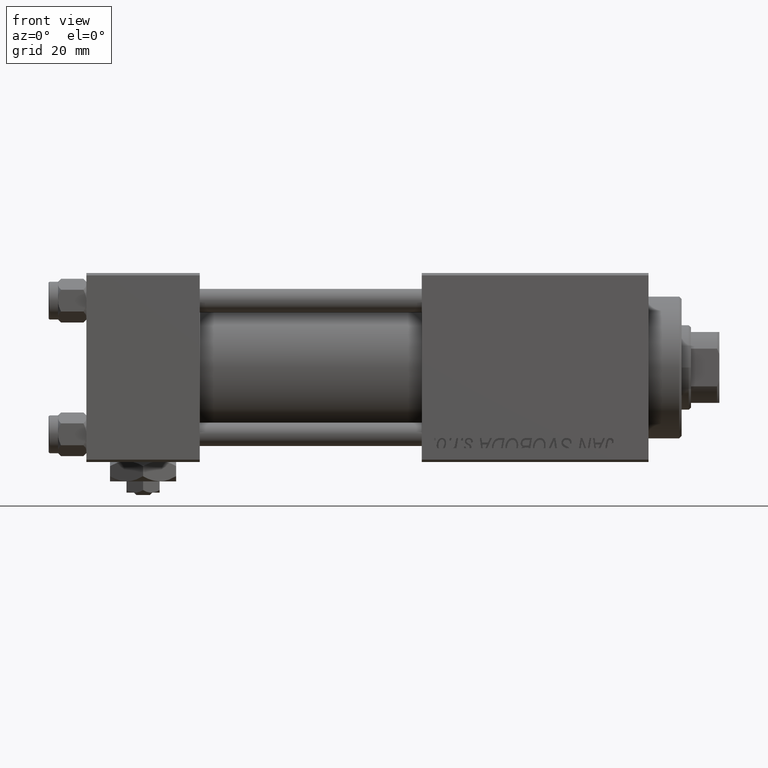
[diagram: clean part render]
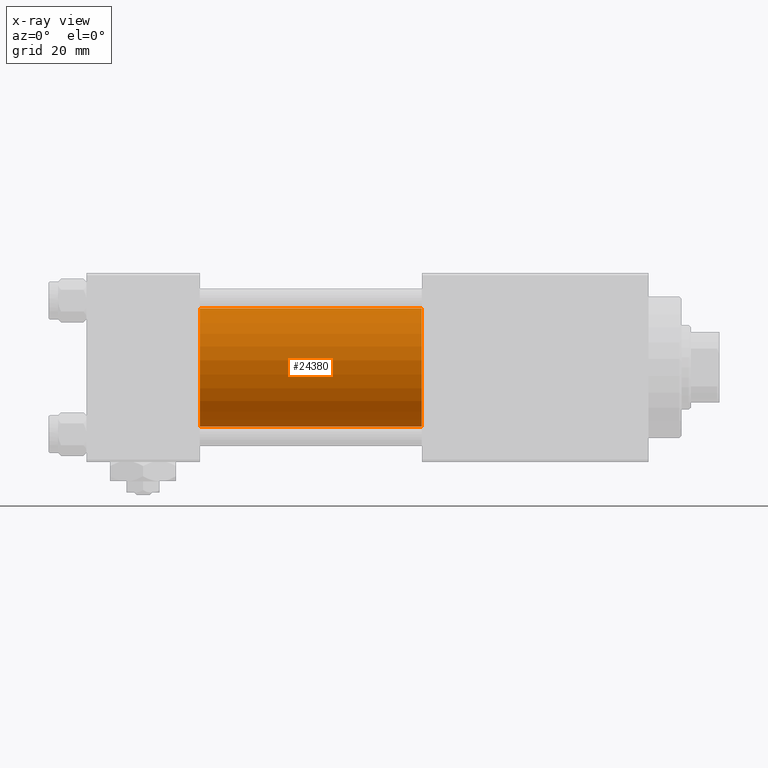
[diagram: x-ray — body ghosted, one internal face saturated and labeled with its STEP entity id]
A machine part, front view, then the same camera in x-ray: the body is ghosted and one INTERNAL B-rep face — a face not visible from any outside direction — is saturated and labeled: STEP entity #24380.
In plain terms, the highlighted cylindrical surface (partial cylindrical patch) has radius 12.5 mm, axis along (-1, -0, -0).
Its self-contained STEP definition (entity closure, byte-faithful):
#62 = VERTEX_POINT ( 'NONE', #50462 ) ;
#1228 = DIRECTION ( 'NONE',  ( 1.000000000000000000, 0.000000000000000000, 0.000000000000000000 ) ) ;
#1869 = EDGE_LOOP ( 'NONE', ( #11983, #22340, #20471, #12762 ) ) ;
#3016 = DIRECTION ( 'NONE',  ( -1.000000000000000000, -0.000000000000000000, -0.000000000000000000 ) ) ;
#3333 = CARTESIAN_POINT ( 'NONE',  ( 71.00000000000001421, -2.602085213965210642E-15, 0.000000000000000000 ) ) ;
#3924 = EDGE_CURVE ( 'NONE', #31345, #50639, #30535, .T. ) ;
#6161 = CARTESIAN_POINT ( 'NONE',  ( 71.00000000000001421, -2.602085213965210642E-15, 12.49999999999999645 ) ) ;
#9117 = DIRECTION ( 'NONE',  ( 0.000000000000000000, 0.000000000000000000, -1.000000000000000000 ) ) ;
#9453 = CARTESIAN_POINT ( 'NONE',  ( 71.00000000000001421, -1.071276715031019515E-15, -12.49999999999999645 ) ) ;
#10713 = CARTESIAN_POINT ( 'NONE',  ( 71.00000000000001421, -1.071276715031019515E-15, -12.49999999999999645 ) ) ;
#11983 = ORIENTED_EDGE ( 'NONE', *, *, #3924, .T. ) ;
#12762 = ORIENTED_EDGE ( 'NONE', *, *, #23450, .F. ) ;
#13086 = AXIS2_PLACEMENT_3D ( 'NONE', #39251, #3016, #19033 ) ;
#13112 = CIRCLE ( 'NONE', #44126, 12.49999999999999645 ) ;
#13116 = EDGE_CURVE ( 'NONE', #62, #47646, #13112, .T. ) ;
#13950 = CARTESIAN_POINT ( 'NONE',  ( 71.00000000000001421, -2.602085213965210642E-15, 12.49999999999999645 ) ) ;
#19033 = DIRECTION ( 'NONE',  ( 0.000000000000000000, 0.000000000000000000, 1.000000000000000000 ) ) ;
#19363 = DIRECTION ( 'NONE',  ( -1.000000000000000000, -0.000000000000000000, -0.000000000000000000 ) ) ;
#20120 = DIRECTION ( 'NONE',  ( 0.000000000000000000, 0.000000000000000000, -1.000000000000000000 ) ) ;
#20471 = ORIENTED_EDGE ( 'NONE', *, *, #13116, .F. ) ;
#22340 = ORIENTED_EDGE ( 'NONE', *, *, #24052, .T. ) ;
#23450 = EDGE_CURVE ( 'NONE', #31345, #62, #34276, .T. ) ;
#24052 = EDGE_CURVE ( 'NONE', #50639, #47646, #50371, .T. ) ;
#24380 = ADVANCED_FACE ( 'NONE', ( #26137 ), #38987, .F. ) ;
#26137 = FACE_OUTER_BOUND ( 'NONE', #1869, .T. ) ;
#27980 = AXIS2_PLACEMENT_3D ( 'NONE', #3333, #47448, #20120 ) ;
#28207 = VECTOR ( 'NONE', #19363, 1000.000000000000000 ) ;
#28999 = VECTOR ( 'NONE', #50291, 1000.000000000000000 ) ;
#30535 = CIRCLE ( 'NONE', #27980, 12.49999999999999645 ) ;
#31345 = VERTEX_POINT ( 'NONE', #13950 ) ;
#31805 = CARTESIAN_POINT ( 'NONE',  ( 24.00000000000000000, -2.602085213965210642E-15, 0.000000000000000000 ) ) ;
#34276 = LINE ( 'NONE', #6161, #28999 ) ;
#38987 = CYLINDRICAL_SURFACE ( 'NONE', #13086, 12.49999999999999645 ) ;
#39251 = CARTESIAN_POINT ( 'NONE',  ( 71.00000000000001421, -2.602085213965210642E-15, 0.000000000000000000 ) ) ;
#40706 = CARTESIAN_POINT ( 'NONE',  ( 24.00000000000000000, -1.071276715031019515E-15, -12.49999999999999645 ) ) ;
#44126 = AXIS2_PLACEMENT_3D ( 'NONE', #31805, #1228, #9117 ) ;
#47448 = DIRECTION ( 'NONE',  ( 1.000000000000000000, 0.000000000000000000, 0.000000000000000000 ) ) ;
#47646 = VERTEX_POINT ( 'NONE', #40706 ) ;
#50291 = DIRECTION ( 'NONE',  ( -1.000000000000000000, -0.000000000000000000, -0.000000000000000000 ) ) ;
#50371 = LINE ( 'NONE', #10713, #28207 ) ;
#50462 = CARTESIAN_POINT ( 'NONE',  ( 24.00000000000000000, -2.602085213965210642E-15, 12.49999999999999645 ) ) ;
#50639 = VERTEX_POINT ( 'NONE', #9453 ) ;